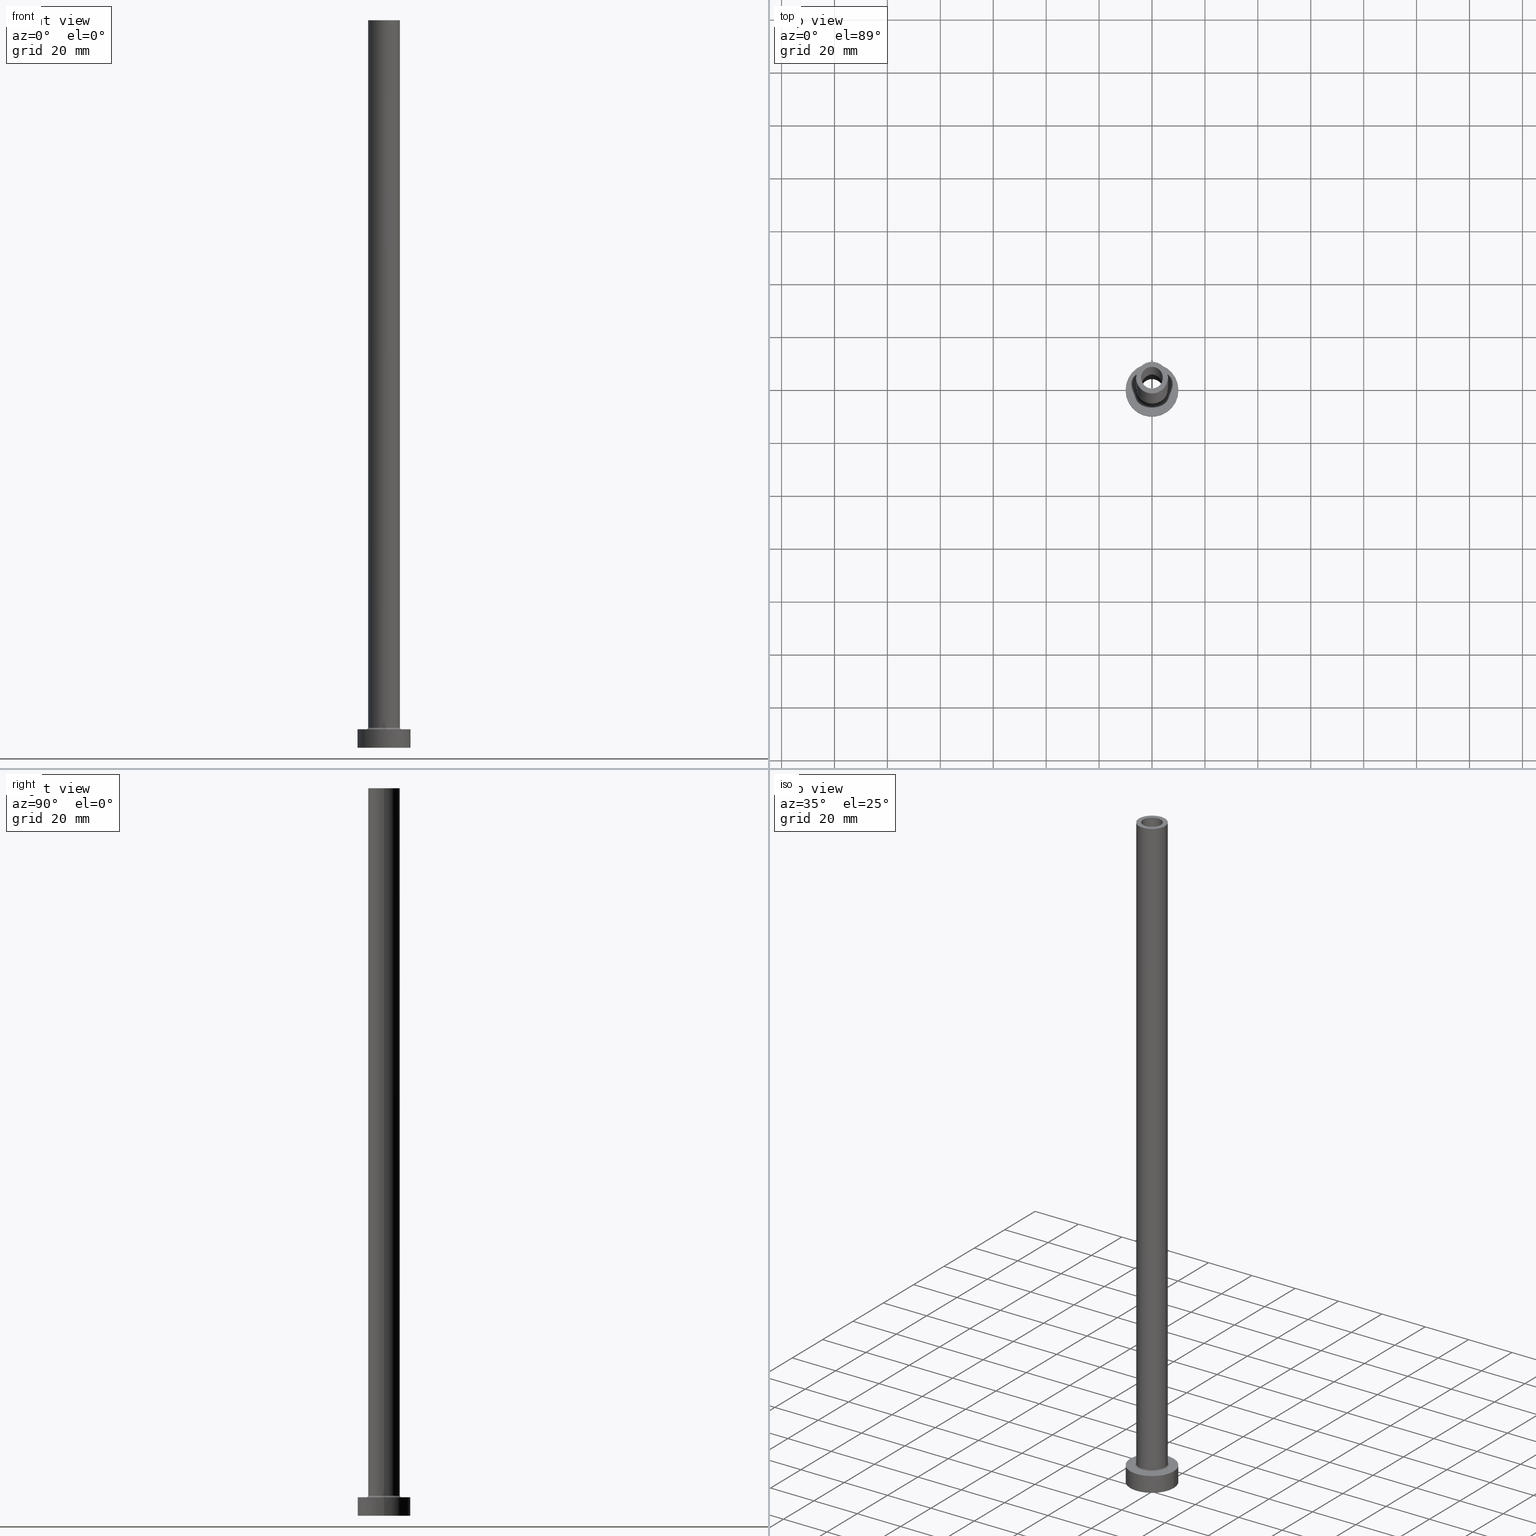
[diagram: canonical four-view strip — front | top / right | iso, engineering-drawing reading convention]
A machine part, canonical four-view strip (front | top / right | iso — engineering-drawing reading convention). The complete STEP part file that produces these views, byte-faithful:
ISO-10303-21;
HEADER;
FILE_DESCRIPTION (( 'STEP AP203' ),
    '1' );
FILE_NAME ('2863.STEP',
    '2023-02-13T07:40:16',
    ( '' ),
    ( '' ),
    'SwSTEP 2.0',
    'SolidWorks 2019',
    '' );
FILE_SCHEMA (( 'CONFIG_CONTROL_DESIGN' ));
ENDSEC;

DATA;
#1 = FACE_OUTER_BOUND ( 'NONE', #260, .T. ) ;
#2 = EDGE_LOOP ( 'NONE', ( #346, #65, #282, #422 ) ) ;
#3 = CARTESIAN_POINT ( 'NONE',  ( 0.000000000000000000, 0.000000000000000000, 275.0000000000000000 ) ) ;
#4 = EDGE_CURVE ( 'NONE', #362, #82, #279, .T. ) ;
#5 = ORIENTED_EDGE ( 'NONE', *, *, #4, .T. ) ;
#6 = APPLICATION_CONTEXT ( 'configuration controlled 3d designs of mechanical parts and assemblies' ) ;
#7 = DIRECTION ( 'NONE',  ( 1.000000000000000000, 0.000000000000000000, -0.000000000000000000 ) ) ;
#8 = ORIENTED_EDGE ( 'NONE', *, *, #254, .T. ) ;
#9 = CIRCLE ( 'NONE', #408, 6.000000000000000888 ) ;
#10 = CARTESIAN_POINT ( 'NONE',  ( 6.000000000000000888, 7.347880794884120722E-16, 275.0000000000000000 ) ) ;
#11 = ORIENTED_EDGE ( 'NONE', *, *, #301, .T. ) ;
#12 = PERSON_AND_ORGANIZATION_ROLE ( 'design_owner' ) ;
#13 = CIRCLE ( 'NONE', #371, 10.00000000000000000 ) ;
#14 = DIRECTION ( 'NONE',  ( 0.000000000000000000, 0.000000000000000000, 1.000000000000000000 ) ) ;
#15 = ORIENTED_EDGE ( 'NONE', *, *, #130, .T. ) ;
#16 = FACE_OUTER_BOUND ( 'NONE', #228, .T. ) ;
#17 = EDGE_CURVE ( 'NONE', #276, #278, #106, .T. ) ;
#18 = APPROVAL_DATE_TIME ( #308, #274 ) ;
#19 = DIRECTION ( 'NONE',  ( -1.000000000000000000, 0.000000000000000000, 0.000000000000000000 ) ) ;
#20 = EDGE_CURVE ( 'NONE', #448, #368, #181, .T. ) ;
#21 = LOCAL_TIME ( 8, 40, 16.00000000000000000, #55 ) ;
#22 = APPROVAL_ROLE ( '' ) ;
#23 = CARTESIAN_POINT ( 'NONE',  ( -10.00000000000000000, 0.000000000000000000, 0.000000000000000000 ) ) ;
#24 = PERSON_AND_ORGANIZATION ( #72, #354 ) ;
#25 = CARTESIAN_POINT ( 'NONE',  ( 0.000000000000000000, 0.000000000000000000, 0.000000000000000000 ) ) ;
#26 = ADVANCED_FACE ( 'NONE', ( #435 ), #46, .T. ) ;
#27 = APPROVAL_STATUS ( 'not_yet_approved' ) ;
#28 = DIRECTION ( 'NONE',  ( 1.000000000000000000, 0.000000000000000000, 0.000000000000000000 ) ) ;
#29 = AXIS2_PLACEMENT_3D ( 'NONE', #269, #54, #122 ) ;
#30 = DIRECTION ( 'NONE',  ( 0.000000000000000000, 0.000000000000000000, -1.000000000000000000 ) ) ;
#31 = DIRECTION ( 'NONE',  ( -1.000000000000000000, 0.000000000000000000, 0.000000000000000000 ) ) ;
#32 = VERTEX_POINT ( 'NONE', #330 ) ;
#33 = ORIENTED_EDGE ( 'NONE', *, *, #458, .T. ) ;
#34 = PLANE ( 'NONE',  #271 ) ;
#35 = ORIENTED_EDGE ( 'NONE', *, *, #121, .F. ) ;
#36 = ORIENTED_EDGE ( 'NONE', *, *, #110, .T. ) ;
#37 = DIRECTION ( 'NONE',  ( -1.000000000000000000, 0.000000000000000000, 0.000000000000000000 ) ) ;
#38 = CLOSED_SHELL ( 'NONE', ( #69, #248, #209, #26, #219, #246, #337, #453, #321, #78, #157, #293, #402, #74 ) ) ;
#39 = ORIENTED_EDGE ( 'NONE', *, *, #17, .T. ) ;
#40 = MANIFOLD_SOLID_BREP ( 'Odebrat vysunut�m4', #38 ) ;
#41 = CARTESIAN_POINT ( 'NONE',  ( -4.099999999999999645, 0.000000000000000000, 275.0000000000000000 ) ) ;
#42 = ORIENTED_EDGE ( 'NONE', *, *, #405, .T. ) ;
#43 = AXIS2_PLACEMENT_3D ( 'NONE', #57, #202, #37 ) ;
#44 = FACE_BOUND ( 'NONE', #247, .T. ) ;
#45 = MECHANICAL_CONTEXT ( 'NONE', #118, 'mechanical' ) ;
#46 = CYLINDRICAL_SURFACE ( 'NONE', #97, 6.000000000000000888 ) ;
#47 = APPROVAL_STATUS ( 'not_yet_approved' ) ;
#48 = CIRCLE ( 'NONE', #196, 10.00000000000000000 ) ;
#49 = DIRECTION ( 'NONE',  ( -1.000000000000000000, 0.000000000000000000, 0.000000000000000000 ) ) ;
#50 = CALENDAR_DATE ( 2023, 13, 2 ) ;
#51 = CARTESIAN_POINT ( 'NONE',  ( 0.000000000000000000, 0.000000000000000000, 275.0000000000000000 ) ) ;
#52 = CIRCLE ( 'NONE', #436, 6.000000000000000888 ) ;
#53 = DATE_AND_TIME ( #88, #432 ) ;
#54 = DIRECTION ( 'NONE',  ( 0.000000000000000000, 0.000000000000000000, 1.000000000000000000 ) ) ;
#55 = COORDINATED_UNIVERSAL_TIME_OFFSET ( 1, 0, .AHEAD. ) ;
#56 = FACE_OUTER_BOUND ( 'NONE', #2, .T. ) ;
#57 = CARTESIAN_POINT ( 'NONE',  ( 0.000000000000000000, 0.000000000000000000, 7.000000000000000000 ) ) ;
#58 = CARTESIAN_POINT ( 'NONE',  ( -4.250000000000000000, 0.000000000000000000, 0.000000000000000000 ) ) ;
#59 = EDGE_LOOP ( 'NONE', ( #35, #210, #325, #99 ) ) ;
#60 = DIRECTION ( 'NONE',  ( -0.000000000000000000, -0.000000000000000000, -1.000000000000000000 ) ) ;
#61 = ORIENTED_EDGE ( 'NONE', *, *, #458, .F. ) ;
#62 = VERTEX_POINT ( 'NONE', #150 ) ;
#63 = EDGE_CURVE ( 'NONE', #170, #323, #328, .T. ) ;
#64 = DIRECTION ( 'NONE',  ( 0.000000000000000000, 0.000000000000000000, 1.000000000000000000 ) ) ;
#65 = ORIENTED_EDGE ( 'NONE', *, *, #121, .T. ) ;
#66 = LINE ( 'NONE', #215, #280 ) ;
#67 = ORIENTED_EDGE ( 'NONE', *, *, #340, .F. ) ;
#68 = VECTOR ( 'NONE', #324, 1000.000000000000000 ) ;
#69 = ADVANCED_FACE ( 'NONE', ( #297 ), #439, .F. ) ;
#70 = CARTESIAN_POINT ( 'NONE',  ( 6.700000000000001066, 0.000000000000000000, 6.999999999999992006 ) ) ;
#71 = VERTEX_POINT ( 'NONE', #414 ) ;
#72 = PERSON ( 'NEUR�EN�', 'NEUR�EN�', 'NEUR�EN�', ('NEUR�EN�'), ('NEUR�EN�'), ('NEUR�EN�') ) ;
#73 = CARTESIAN_POINT ( 'NONE',  ( 0.000000000000000000, 0.000000000000000000, 230.0000000000000284 ) ) ;
#74 = ADVANCED_FACE ( 'NONE', ( #16 ), #307, .F. ) ;
#75 =( NAMED_UNIT ( * ) PLANE_ANGLE_UNIT ( ) SI_UNIT ( $, .RADIAN. ) );
#76 = AXIS2_PLACEMENT_3D ( 'NONE', #256, #155, #338 ) ;
#77 = DIRECTION ( 'NONE',  ( 0.000000000000000000, 0.000000000000000000, 1.000000000000000000 ) ) ;
#78 = ADVANCED_FACE ( 'NONE', ( #447, #87 ), #419, .T. ) ;
#79 = PERSON_AND_ORGANIZATION ( #72, #354 ) ;
#80 = EDGE_CURVE ( 'NONE', #170, #148, #287, .T. ) ;
#81 = SECURITY_CLASSIFICATION_LEVEL ( 'unclassified' ) ;
#82 = VERTEX_POINT ( 'NONE', #156 ) ;
#83 = CIRCLE ( 'NONE', #126, 0.7000000000000000666 ) ;
#84 = DATE_AND_TIME ( #50, #21 ) ;
#85 = DIRECTION ( 'NONE',  ( 1.000000000000000000, 0.000000000000000000, 0.000000000000000000 ) ) ;
#86 = CC_DESIGN_PERSON_AND_ORGANIZATION_ASSIGNMENT ( #445, #449, ( #288 ) ) ;
#87 = FACE_OUTER_BOUND ( 'NONE', #134, .T. ) ;
#88 = CALENDAR_DATE ( 2023, 13, 2 ) ;
#89 = CARTESIAN_POINT ( 'NONE',  ( -6.000000000000000888, 0.000000000000000000, 7.699999999999985079 ) ) ;
#90 = AXIS2_PLACEMENT_3D ( 'NONE', #380, #345, #28 ) ;
#91 = VECTOR ( 'NONE', #433, 1000.000000000000000 ) ;
#92 = PERSON_AND_ORGANIZATION ( #72, #354 ) ;
#93 = DIRECTION ( 'NONE',  ( 1.224646799147353207E-16, 1.000000000000000000, -0.000000000000000000 ) ) ;
#94 = DIRECTION ( 'NONE',  ( 1.000000000000000000, 0.000000000000000000, 0.000000000000000000 ) ) ;
#95 = DIRECTION ( 'NONE',  ( 1.000000000000000000, 0.000000000000000000, -0.000000000000000000 ) ) ;
#96 = PRODUCT_DEFINITION_SHAPE ( 'NONE', 'NONE',  #384 ) ;
#97 = AXIS2_PLACEMENT_3D ( 'NONE', #182, #187, #292 ) ;
#98 = CARTESIAN_POINT ( 'NONE',  ( 0.000000000000000000, 0.000000000000000000, 275.0000000000000000 ) ) ;
#99 = ORIENTED_EDGE ( 'NONE', *, *, #164, .F. ) ;
#100 = ORIENTED_EDGE ( 'NONE', *, *, #443, .T. ) ;
#101 = LINE ( 'NONE', #204, #353 ) ;
#102 = ORIENTED_EDGE ( 'NONE', *, *, #443, .F. ) ;
#103 = DIRECTION ( 'NONE',  ( 0.000000000000000000, 0.000000000000000000, -1.000000000000000000 ) ) ;
#104 = ORIENTED_EDGE ( 'NONE', *, *, #80, .T. ) ;
#105 = DIRECTION ( 'NONE',  ( 1.000000000000000000, 0.000000000000000000, 0.000000000000000000 ) ) ;
#106 = CIRCLE ( 'NONE', #76, 4.250000000000000000 ) ;
#107 = ORIENTED_EDGE ( 'NONE', *, *, #350, .T. ) ;
#108 =( NAMED_UNIT ( * ) SI_UNIT ( $, .STERADIAN. ) SOLID_ANGLE_UNIT ( ) );
#109 = CARTESIAN_POINT ( 'NONE',  ( 0.000000000000000000, 0.000000000000000000, 7.699999999999985079 ) ) ;
#110 = EDGE_CURVE ( 'NONE', #278, #276, #120, .T. ) ;
#111 = PRODUCT ( '2863', '2863', '', ( #45 ) ) ;
#112 = FACE_BOUND ( 'NONE', #332, .T. ) ;
#113 = AXIS2_PLACEMENT_3D ( 'NONE', #275, #60, #105 ) ;
#114 = CC_DESIGN_DATE_AND_TIME_ASSIGNMENT ( #162, #200, ( #383 ) ) ;
#115 = CC_DESIGN_APPROVAL ( #262, ( #383 ) ) ;
#116 = EDGE_LOOP ( 'NONE', ( #175, #264 ) ) ;
#117 = PLANE ( 'NONE',  #409 ) ;
#118 = APPLICATION_CONTEXT ( 'configuration controlled 3d designs of mechanical parts and assemblies' ) ;
#119 = DIRECTION ( 'NONE',  ( 0.000000000000000000, 0.000000000000000000, 1.000000000000000000 ) ) ;
#120 = CIRCLE ( 'NONE', #424, 4.250000000000000000 ) ;
#121 = EDGE_CURVE ( 'NONE', #140, #142, #83, .T. ) ;
#122 = DIRECTION ( 'NONE',  ( 1.000000000000000000, 0.000000000000000000, -0.000000000000000000 ) ) ;
#123 = COORDINATED_UNIVERSAL_TIME_OFFSET ( 1, 0, .AHEAD. ) ;
#124 = DIRECTION ( 'NONE',  ( 1.000000000000000000, 0.000000000000000000, 0.000000000000000000 ) ) ;
#125 = DIRECTION ( 'NONE',  ( 1.000000000000000000, 0.000000000000000000, 0.000000000000000000 ) ) ;
#126 = AXIS2_PLACEMENT_3D ( 'NONE', #442, #93, #378 ) ;
#127 = VECTOR ( 'NONE', #259, 1000.000000000000000 ) ;
#128 = PERSON_AND_ORGANIZATION_ROLE ( 'classification_officer' ) ;
#129 = EDGE_CURVE ( 'NONE', #208, #323, #13, .T. ) ;
#130 = EDGE_CURVE ( 'NONE', #148, #170, #173, .T. ) ;
#131 = CYLINDRICAL_SURFACE ( 'NONE', #381, 6.000000000000000888 ) ;
#132 = CC_DESIGN_PERSON_AND_ORGANIZATION_ASSIGNMENT ( #198, #159, ( #288 ) ) ;
#133 = DIRECTION ( 'NONE',  ( 0.000000000000000000, 0.000000000000000000, 1.000000000000000000 ) ) ;
#134 = EDGE_LOOP ( 'NONE', ( #356, #8 ) ) ;
#135 = AXIS2_PLACEMENT_3D ( 'NONE', #232, #199, #193 ) ;
#136 = CARTESIAN_POINT ( 'NONE',  ( 4.250000000000000000, 5.204748896376250699E-16, 242.0208152801713197 ) ) ;
#137 = ORIENTED_EDGE ( 'NONE', *, *, #311, .F. ) ;
#138 = EDGE_LOOP ( 'NONE', ( #61, #239, #100, #399 ) ) ;
#139 = LINE ( 'NONE', #136, #145 ) ;
#140 = VERTEX_POINT ( 'NONE', #89 ) ;
#141 = FACE_OUTER_BOUND ( 'NONE', #138, .T. ) ;
#142 = VERTEX_POINT ( 'NONE', #444 ) ;
#143 = ORIENTED_EDGE ( 'NONE', *, *, #352, .T. ) ;
#144 = DIRECTION ( 'NONE',  ( 0.000000000000000000, 0.000000000000000000, 1.000000000000000000 ) ) ;
#145 = VECTOR ( 'NONE', #30, 1000.000000000000000 ) ;
#146 = CARTESIAN_POINT ( 'NONE',  ( 6.700000000000001066, 0.000000000000000000, 7.699999999999985079 ) ) ;
#147 = CARTESIAN_POINT ( 'NONE',  ( 0.000000000000000000, 0.000000000000000000, 0.000000000000000000 ) ) ;
#148 = VERTEX_POINT ( 'NONE', #270 ) ;
#149 = APPLICATION_PROTOCOL_DEFINITION ( 'international standard', 'config_control_design', 1994, #118 ) ;
#150 = CARTESIAN_POINT ( 'NONE',  ( 4.099999999999999645, 5.021051876504146399E-16, 275.0000000000000000 ) ) ;
#151 = CARTESIAN_POINT ( 'NONE',  ( -6.000000000000000888, 0.000000000000000000, 275.0000000000000000 ) ) ;
#152 = DIRECTION ( 'NONE',  ( -0.000000000000000000, -0.000000000000000000, -1.000000000000000000 ) ) ;
#153 = CIRCLE ( 'NONE', #113, 6.700000000000001066 ) ;
#154 = CC_DESIGN_APPROVAL ( #349, ( #288 ) ) ;
#155 = DIRECTION ( 'NONE',  ( -0.000000000000000000, -0.000000000000000000, -1.000000000000000000 ) ) ;
#156 = CARTESIAN_POINT ( 'NONE',  ( 4.250000000000000000, 5.204748896376250699E-16, 230.0000000000000284 ) ) ;
#157 = ADVANCED_FACE ( 'NONE', ( #234 ), #242, .F. ) ;
#158 = ADVANCED_BREP_SHAPE_REPRESENTATION ( '2863', ( #40, #251 ), #197 ) ;
#159 = PERSON_AND_ORGANIZATION_ROLE ( 'design_supplier' ) ;
#160 = DIRECTION ( 'NONE',  ( 0.000000000000000000, 0.000000000000000000, 1.000000000000000000 ) ) ;
#161 = CIRCLE ( 'NONE', #90, 6.700000000000001066 ) ;
#162 = DATE_AND_TIME ( #336, #236 ) ;
#163 = PERSON_AND_ORGANIZATION ( #72, #354 ) ;
#164 = EDGE_CURVE ( 'NONE', #142, #368, #161, .T. ) ;
#165 = CIRCLE ( 'NONE', #431, 4.099999999999999645 ) ;
#166 = DIRECTION ( 'NONE',  ( -0.000000000000000000, -0.000000000000000000, -1.000000000000000000 ) ) ;
#167 = EDGE_CURVE ( 'NONE', #460, #317, #52, .T. ) ;
#168 = CC_DESIGN_PERSON_AND_ORGANIZATION_ASSIGNMENT ( #341, #230, ( #384 ) ) ;
#169 = DIRECTION ( 'NONE',  ( 0.000000000000000000, 0.000000000000000000, -1.000000000000000000 ) ) ;
#170 = VERTEX_POINT ( 'NONE', #413 ) ;
#171 = CARTESIAN_POINT ( 'NONE',  ( 0.000000000000000000, 0.000000000000000000, 230.0000000000000284 ) ) ;
#172 = ORIENTED_EDGE ( 'NONE', *, *, #352, .F. ) ;
#173 = CIRCLE ( 'NONE', #392, 10.00000000000000000 ) ;
#174 = CYLINDRICAL_SURFACE ( 'NONE', #303, 10.00000000000000000 ) ;
#175 = ORIENTED_EDGE ( 'NONE', *, *, #129, .F. ) ;
#176 = CARTESIAN_POINT ( 'NONE',  ( 0.000000000000000000, 0.000000000000000000, 7.000000000000000000 ) ) ;
#177 = EDGE_LOOP ( 'NONE', ( #218, #320 ) ) ;
#178 = LINE ( 'NONE', #411, #68 ) ;
#179 = ORIENTED_EDGE ( 'NONE', *, *, #340, .T. ) ;
#180 = DIRECTION ( 'NONE',  ( 0.000000000000000000, 0.000000000000000000, 1.000000000000000000 ) ) ;
#181 = CIRCLE ( 'NONE', #416, 0.7000000000000000666 ) ;
#182 = CARTESIAN_POINT ( 'NONE',  ( 0.000000000000000000, 0.000000000000000000, 275.0000000000000000 ) ) ;
#183 = APPROVAL_PERSON_ORGANIZATION ( #92, #349, #385 ) ;
#184 = DIRECTION ( 'NONE',  ( 0.000000000000000000, 0.000000000000000000, 1.000000000000000000 ) ) ;
#185 = DIRECTION ( 'NONE',  ( 1.000000000000000000, 0.000000000000000000, 0.000000000000000000 ) ) ;
#186 = FACE_OUTER_BOUND ( 'NONE', #253, .T. ) ;
#187 = DIRECTION ( 'NONE',  ( -0.000000000000000000, -0.000000000000000000, -1.000000000000000000 ) ) ;
#188 = CARTESIAN_POINT ( 'NONE',  ( 0.000000000000000000, 0.000000000000000000, 0.000000000000000000 ) ) ;
#189 = AXIS2_PLACEMENT_3D ( 'NONE', #3, #426, #252 ) ;
#190 = LOCAL_TIME ( 8, 40, 16.00000000000000000, #299 ) ;
#191 = UNCERTAINTY_MEASURE_WITH_UNIT (LENGTH_MEASURE( 1.000000000000000082E-05 ), #289, 'distance_accuracy_value', 'NONE');
#192 = APPROVAL_DATE_TIME ( #84, #349 ) ;
#193 = DIRECTION ( 'NONE',  ( 1.000000000000000000, 0.000000000000000000, 0.000000000000000000 ) ) ;
#194 = EDGE_CURVE ( 'NONE', #448, #140, #450, .T. ) ;
#195 = DIRECTION ( 'NONE',  ( 0.000000000000000000, 0.000000000000000000, 1.000000000000000000 ) ) ;
#196 = AXIS2_PLACEMENT_3D ( 'NONE', #423, #133, #243 ) ;
#197 =( GEOMETRIC_REPRESENTATION_CONTEXT ( 3 ) GLOBAL_UNCERTAINTY_ASSIGNED_CONTEXT ( ( #191 ) ) GLOBAL_UNIT_ASSIGNED_CONTEXT ( ( #289, #75, #108 ) ) REPRESENTATION_CONTEXT ( 'NONE', 'WORKASPACE' ) );
#198 = PERSON_AND_ORGANIZATION ( #72, #354 ) ;
#199 = DIRECTION ( 'NONE',  ( 0.000000000000000000, 0.000000000000000000, 1.000000000000000000 ) ) ;
#200 = DATE_TIME_ROLE ( 'classification_date' ) ;
#201 = CARTESIAN_POINT ( 'NONE',  ( 0.000000000000000000, 0.000000000000000000, 7.699999999999985079 ) ) ;
#202 = DIRECTION ( 'NONE',  ( -0.000000000000000000, -0.000000000000000000, -1.000000000000000000 ) ) ;
#203 = LOCAL_TIME ( 8, 40, 16.00000000000000000, #123 ) ;
#204 = CARTESIAN_POINT ( 'NONE',  ( 4.099999999999999645, 5.021051876504146399E-16, 275.0000000000000000 ) ) ;
#205 = ORIENTED_EDGE ( 'NONE', *, *, #110, .F. ) ;
#206 = ORIENTED_EDGE ( 'NONE', *, *, #130, .F. ) ;
#207 = FACE_BOUND ( 'NONE', #177, .T. ) ;
#208 = VERTEX_POINT ( 'NONE', #23 ) ;
#209 = ADVANCED_FACE ( 'NONE', ( #56 ), #363, .F. ) ;
#210 = ORIENTED_EDGE ( 'NONE', *, *, #194, .F. ) ;
#211 = DIRECTION ( 'NONE',  ( -0.000000000000000000, -0.000000000000000000, -1.000000000000000000 ) ) ;
#212 = ORIENTED_EDGE ( 'NONE', *, *, #194, .T. ) ;
#213 = ORIENTED_EDGE ( 'NONE', *, *, #405, .F. ) ;
#214 = VECTOR ( 'NONE', #152, 1000.000000000000000 ) ;
#215 = CARTESIAN_POINT ( 'NONE',  ( -10.00000000000000000, 0.000000000000000000, 7.000000000000000000 ) ) ;
#216 = ORIENTED_EDGE ( 'NONE', *, *, #129, .T. ) ;
#217 = PERSON_AND_ORGANIZATION ( #72, #354 ) ;
#218 = ORIENTED_EDGE ( 'NONE', *, *, #329, .T. ) ;
#219 = ADVANCED_FACE ( 'NONE', ( #415 ), #348, .T. ) ;
#220 = CARTESIAN_POINT ( 'NONE',  ( -6.000000000000000888, 0.000000000000000000, 275.0000000000000000 ) ) ;
#221 = DIRECTION ( 'NONE',  ( 0.000000000000000000, -1.000000000000000000, 0.000000000000000000 ) ) ;
#222 = EDGE_CURVE ( 'NONE', #62, #32, #101, .T. ) ;
#223 = AXIS2_PLACEMENT_3D ( 'NONE', #201, #306, #124 ) ;
#224 = DIRECTION ( 'NONE',  ( 1.000000000000000000, 0.000000000000000000, 0.000000000000000000 ) ) ;
#225 = ORIENTED_EDGE ( 'NONE', *, *, #311, .T. ) ;
#226 = ORIENTED_EDGE ( 'NONE', *, *, #63, .F. ) ;
#227 = CARTESIAN_POINT ( 'NONE',  ( 0.000000000000000000, 0.000000000000000000, 230.0000000000000284 ) ) ;
#228 = EDGE_LOOP ( 'NONE', ( #374, #315, #42, #67 ) ) ;
#229 = APPROVAL_DATE_TIME ( #441, #262 ) ;
#230 = PERSON_AND_ORGANIZATION_ROLE ( 'creator' ) ;
#231 = EDGE_CURVE ( 'NONE', #82, #278, #139, .T. ) ;
#232 = CARTESIAN_POINT ( 'NONE',  ( 0.000000000000000000, 0.000000000000000000, 7.000000000000000000 ) ) ;
#233 = CC_DESIGN_DATE_AND_TIME_ASSIGNMENT ( #53, #237, ( #384 ) ) ;
#234 = FACE_OUTER_BOUND ( 'NONE', #59, .T. ) ;
#235 = AXIS2_PLACEMENT_3D ( 'NONE', #370, #372, #185 ) ;
#236 = LOCAL_TIME ( 8, 40, 16.00000000000000000, #379 ) ;
#237 = DATE_TIME_ROLE ( 'creation_date' ) ;
#238 = DIRECTION ( 'NONE',  ( 1.000000000000000000, 0.000000000000000000, 0.000000000000000000 ) ) ;
#239 = ORIENTED_EDGE ( 'NONE', *, *, #167, .F. ) ;
#240 = CARTESIAN_POINT ( 'NONE',  ( 0.000000000000000000, 0.000000000000000000, 275.0000000000000000 ) ) ;
#241 = ORIENTED_EDGE ( 'NONE', *, *, #387, .T. ) ;
#242 = TOROIDAL_SURFACE ( 'NONE', #294, 6.700000000000001066, 0.6999999999999999556 ) ;
#243 = DIRECTION ( 'NONE',  ( 1.000000000000000000, 0.000000000000000000, 0.000000000000000000 ) ) ;
#244 = ORIENTED_EDGE ( 'NONE', *, *, #387, .F. ) ;
#245 = CYLINDRICAL_SURFACE ( 'NONE', #459, 4.250000000000000000 ) ;
#246 = ADVANCED_FACE ( 'NONE', ( #351 ), #174, .T. ) ;
#247 = EDGE_LOOP ( 'NONE', ( #241, #179 ) ) ;
#248 = ADVANCED_FACE ( 'NONE', ( #319 ), #285, .F. ) ;
#249 = DIRECTION ( 'NONE',  ( 0.000000000000000000, 0.000000000000000000, 1.000000000000000000 ) ) ;
#250 = EDGE_LOOP ( 'NONE', ( #15, #104 ) ) ;
#251 = AXIS2_PLACEMENT_3D ( 'NONE', #188, #184, #373 ) ;
#252 = DIRECTION ( 'NONE',  ( 1.000000000000000000, 0.000000000000000000, 0.000000000000000000 ) ) ;
#253 = EDGE_LOOP ( 'NONE', ( #389, #360 ) ) ;
#254 = EDGE_CURVE ( 'NONE', #317, #460, #9, .T. ) ;
#255 = DIRECTION ( 'NONE',  ( 1.000000000000000000, 0.000000000000000000, -0.000000000000000000 ) ) ;
#256 = CARTESIAN_POINT ( 'NONE',  ( 0.000000000000000000, 0.000000000000000000, 0.000000000000000000 ) ) ;
#257 = LINE ( 'NONE', #220, #91 ) ;
#258 = VECTOR ( 'NONE', #103, 1000.000000000000000 ) ;
#259 = DIRECTION ( 'NONE',  ( -0.000000000000000000, -0.000000000000000000, -1.000000000000000000 ) ) ;
#260 = EDGE_LOOP ( 'NONE', ( #425, #397, #225, #39 ) ) ;
#261 = CARTESIAN_POINT ( 'NONE',  ( 0.000000000000000000, 0.000000000000000000, 275.0000000000000000 ) ) ;
#262 = APPROVAL ( #27, 'NEUR�EN�' ) ;
#263 = DIRECTION ( 'NONE',  ( 1.000000000000000000, 0.000000000000000000, 0.000000000000000000 ) ) ;
#264 = ORIENTED_EDGE ( 'NONE', *, *, #301, .F. ) ;
#265 = CARTESIAN_POINT ( 'NONE',  ( 0.000000000000000000, 0.000000000000000000, 7.000000000000000000 ) ) ;
#266 = AXIS2_PLACEMENT_3D ( 'NONE', #281, #396, #454 ) ;
#267 = APPROVAL_STATUS ( 'not_yet_approved' ) ;
#268 = DIRECTION ( 'NONE',  ( -0.000000000000000000, -0.000000000000000000, -1.000000000000000000 ) ) ;
#269 = CARTESIAN_POINT ( 'NONE',  ( 0.000000000000000000, 0.000000000000000000, 275.0000000000000000 ) ) ;
#270 = CARTESIAN_POINT ( 'NONE',  ( -10.00000000000000000, 0.000000000000000000, 7.000000000000000000 ) ) ;
#271 = AXIS2_PLACEMENT_3D ( 'NONE', #421, #249, #95 ) ;
#272 = AXIS2_PLACEMENT_3D ( 'NONE', #73, #180, #263 ) ;
#273 = DIRECTION ( 'NONE',  ( 0.000000000000000000, 0.000000000000000000, -1.000000000000000000 ) ) ;
#274 = APPROVAL ( #47, 'NEUR�EN�' ) ;
#275 = CARTESIAN_POINT ( 'NONE',  ( 0.000000000000000000, 0.000000000000000000, 7.000000000000000000 ) ) ;
#276 = VERTEX_POINT ( 'NONE', #58 ) ;
#277 = CARTESIAN_POINT ( 'NONE',  ( 0.000000000000000000, 0.000000000000000000, 242.0208152801713197 ) ) ;
#278 = VERTEX_POINT ( 'NONE', #313 ) ;
#279 = CIRCLE ( 'NONE', #235, 4.250000000000000000 ) ;
#280 = VECTOR ( 'NONE', #365, 1000.000000000000000 ) ;
#281 = CARTESIAN_POINT ( 'NONE',  ( 0.000000000000000000, 0.000000000000000000, 242.0208152801713197 ) ) ;
#282 = ORIENTED_EDGE ( 'NONE', *, *, #329, .F. ) ;
#283 = CARTESIAN_POINT ( 'NONE',  ( -4.250000000000000000, 0.000000000000000000, 242.0208152801713197 ) ) ;
#284 = ORIENTED_EDGE ( 'NONE', *, *, #222, .T. ) ;
#285 = CYLINDRICAL_SURFACE ( 'NONE', #266, 4.250000000000000000 ) ;
#286 = EDGE_LOOP ( 'NONE', ( #107, #284, #244, #213 ) ) ;
#287 = CIRCLE ( 'NONE', #135, 10.00000000000000000 ) ;
#288 = PRODUCT_DEFINITION_FORMATION_WITH_SPECIFIED_SOURCE ( 'LIBOVOLN�', '', #111, .NOT_KNOWN. ) ;
#289 =( LENGTH_UNIT ( ) NAMED_UNIT ( * ) SI_UNIT ( .MILLI., .METRE. ) );
#290 = DIRECTION ( 'NONE',  ( 0.000000000000000000, 0.000000000000000000, -1.000000000000000000 ) ) ;
#291 = CARTESIAN_POINT ( 'NONE',  ( 0.000000000000000000, 0.000000000000000000, 230.0000000000000284 ) ) ;
#292 = DIRECTION ( 'NONE',  ( -1.000000000000000000, 0.000000000000000000, 0.000000000000000000 ) ) ;
#293 = ADVANCED_FACE ( 'NONE', ( #1 ), #245, .F. ) ;
#294 = AXIS2_PLACEMENT_3D ( 'NONE', #382, #388, #417 ) ;
#295 = APPLICATION_PROTOCOL_DEFINITION ( 'international standard', 'config_control_design', 1994, #6 ) ;
#296 = CIRCLE ( 'NONE', #272, 4.099999999999999645 ) ;
#297 = FACE_OUTER_BOUND ( 'NONE', #286, .T. ) ;
#298 = PRODUCT_RELATED_PRODUCT_CATEGORY ( 'detail', '', ( #111 ) ) ;
#299 = COORDINATED_UNIVERSAL_TIME_OFFSET ( 1, 0, .AHEAD. ) ;
#300 = DIRECTION ( 'NONE',  ( 0.000000000000000000, 0.000000000000000000, -1.000000000000000000 ) ) ;
#301 = EDGE_CURVE ( 'NONE', #323, #208, #48, .T. ) ;
#302 = DIRECTION ( 'NONE',  ( 1.000000000000000000, 0.000000000000000000, 0.000000000000000000 ) ) ;
#303 = AXIS2_PLACEMENT_3D ( 'NONE', #176, #166, #355 ) ;
#304 = APPROVAL_PERSON_ORGANIZATION ( #79, #274, #334 ) ;
#305 = COORDINATED_UNIVERSAL_TIME_OFFSET ( 1, 0, .AHEAD. ) ;
#306 = DIRECTION ( 'NONE',  ( 0.000000000000000000, 0.000000000000000000, 1.000000000000000000 ) ) ;
#307 = CYLINDRICAL_SURFACE ( 'NONE', #327, 4.099999999999999645 ) ;
#308 = DATE_AND_TIME ( #440, #190 ) ;
#309 = ORIENTED_EDGE ( 'NONE', *, *, #17, .F. ) ;
#310 = CIRCLE ( 'NONE', #333, 4.099999999999999645 ) ;
#311 = EDGE_CURVE ( 'NONE', #362, #276, #428, .T. ) ;
#312 = CC_DESIGN_APPROVAL ( #274, ( #384 ) ) ;
#313 = CARTESIAN_POINT ( 'NONE',  ( 4.250000000000000000, 5.204748896376250699E-16, 0.000000000000000000 ) ) ;
#314 = DIRECTION ( 'NONE',  ( 0.000000000000000000, 0.000000000000000000, -1.000000000000000000 ) ) ;
#315 = ORIENTED_EDGE ( 'NONE', *, *, #347, .T. ) ;
#316 = DIRECTION ( 'NONE',  ( 0.000000000000000000, 0.000000000000000000, 1.000000000000000000 ) ) ;
#317 = VERTEX_POINT ( 'NONE', #452 ) ;
#318 = ORIENTED_EDGE ( 'NONE', *, *, #80, .F. ) ;
#319 = FACE_OUTER_BOUND ( 'NONE', #455, .T. ) ;
#320 = ORIENTED_EDGE ( 'NONE', *, *, #164, .T. ) ;
#321 = ADVANCED_FACE ( 'NONE', ( #141 ), #131, .T. ) ;
#322 = CARTESIAN_POINT ( 'NONE',  ( 10.00000000000000000, 1.224646799147353256E-15, 0.000000000000000000 ) ) ;
#323 = VERTEX_POINT ( 'NONE', #322 ) ;
#324 = DIRECTION ( 'NONE',  ( 0.000000000000000000, 0.000000000000000000, -1.000000000000000000 ) ) ;
#325 = ORIENTED_EDGE ( 'NONE', *, *, #20, .T. ) ;
#326 = CC_DESIGN_PERSON_AND_ORGANIZATION_ASSIGNMENT ( #163, #128, ( #383 ) ) ;
#327 = AXIS2_PLACEMENT_3D ( 'NONE', #451, #300, #19 ) ;
#328 = LINE ( 'NONE', #376, #214 ) ;
#329 = EDGE_CURVE ( 'NONE', #368, #142, #153, .T. ) ;
#330 = CARTESIAN_POINT ( 'NONE',  ( 4.099999999999999645, 5.021051876504146399E-16, 230.0000000000000284 ) ) ;
#331 = PLANE ( 'NONE',  #393 ) ;
#332 = EDGE_LOOP ( 'NONE', ( #309, #205 ) ) ;
#333 = AXIS2_PLACEMENT_3D ( 'NONE', #171, #316, #457 ) ;
#334 = APPROVAL_ROLE ( '' ) ;
#335 = DESIGN_CONTEXT ( 'detailed design', #6, 'design' ) ;
#336 = CALENDAR_DATE ( 2023, 13, 2 ) ;
#337 = ADVANCED_FACE ( 'NONE', ( #207, #358 ), #34, .T. ) ;
#338 = DIRECTION ( 'NONE',  ( 1.000000000000000000, 0.000000000000000000, 0.000000000000000000 ) ) ;
#339 = CALENDAR_DATE ( 2023, 13, 2 ) ;
#340 = EDGE_CURVE ( 'NONE', #32, #71, #310, .T. ) ;
#341 = PERSON_AND_ORGANIZATION ( #72, #354 ) ;
#342 = AXIS2_PLACEMENT_3D ( 'NONE', #261, #273, #49 ) ;
#343 = DIRECTION ( 'NONE',  ( 0.000000000000000000, 0.000000000000000000, 1.000000000000000000 ) ) ;
#344 = APPROVAL_PERSON_ORGANIZATION ( #24, #262, #22 ) ;
#345 = DIRECTION ( 'NONE',  ( -0.000000000000000000, -0.000000000000000000, -1.000000000000000000 ) ) ;
#346 = ORIENTED_EDGE ( 'NONE', *, *, #434, .F. ) ;
#347 = EDGE_CURVE ( 'NONE', #62, #357, #400, .T. ) ;
#348 = CYLINDRICAL_SURFACE ( 'NONE', #43, 10.00000000000000000 ) ;
#349 = APPROVAL ( #267, 'NEUR�EN�' ) ;
#350 = EDGE_CURVE ( 'NONE', #357, #62, #165, .T. ) ;
#351 = FACE_OUTER_BOUND ( 'NONE', #420, .T. ) ;
#352 = EDGE_CURVE ( 'NONE', #148, #208, #66, .T. ) ;
#353 = VECTOR ( 'NONE', #314, 1000.000000000000000 ) ;
#354 = ORGANIZATION ( 'NEUR�EN�', 'NEUR�EN�', '' ) ;
#355 = DIRECTION ( 'NONE',  ( -1.000000000000000000, 0.000000000000000000, 0.000000000000000000 ) ) ;
#356 = ORIENTED_EDGE ( 'NONE', *, *, #167, .T. ) ;
#357 = VERTEX_POINT ( 'NONE', #41 ) ;
#358 = FACE_OUTER_BOUND ( 'NONE', #250, .T. ) ;
#359 = EDGE_LOOP ( 'NONE', ( #427, #33, #212, #102 ) ) ;
#360 = ORIENTED_EDGE ( 'NONE', *, *, #456, .F. ) ;
#361 = DIRECTION ( 'NONE',  ( -1.000000000000000000, 0.000000000000000000, 0.000000000000000000 ) ) ;
#362 = VERTEX_POINT ( 'NONE', #403 ) ;
#363 = TOROIDAL_SURFACE ( 'NONE', #223, 6.700000000000001066, 0.6999999999999999556 ) ;
#364 = CIRCLE ( 'NONE', #461, 4.250000000000000000 ) ;
#365 = DIRECTION ( 'NONE',  ( -0.000000000000000000, -0.000000000000000000, -1.000000000000000000 ) ) ;
#366 = ORIENTED_EDGE ( 'NONE', *, *, #347, .F. ) ;
#367 = CC_DESIGN_PERSON_AND_ORGANIZATION_ASSIGNMENT ( #217, #12, ( #111 ) ) ;
#368 = VERTEX_POINT ( 'NONE', #70 ) ;
#369 = DIRECTION ( 'NONE',  ( 1.000000000000000000, 0.000000000000000000, 0.000000000000000000 ) ) ;
#370 = CARTESIAN_POINT ( 'NONE',  ( 0.000000000000000000, 0.000000000000000000, 230.0000000000000284 ) ) ;
#371 = AXIS2_PLACEMENT_3D ( 'NONE', #25, #119, #302 ) ;
#372 = DIRECTION ( 'NONE',  ( 0.000000000000000000, 0.000000000000000000, 1.000000000000000000 ) ) ;
#373 = DIRECTION ( 'NONE',  ( 1.000000000000000000, 0.000000000000000000, 0.000000000000000000 ) ) ;
#374 = ORIENTED_EDGE ( 'NONE', *, *, #222, .F. ) ;
#375 = FACE_OUTER_BOUND ( 'NONE', #116, .T. ) ;
#376 = CARTESIAN_POINT ( 'NONE',  ( 10.00000000000000000, 1.224646799147353256E-15, 7.000000000000000000 ) ) ;
#377 = SHAPE_DEFINITION_REPRESENTATION ( #96, #158 ) ;
#378 = DIRECTION ( 'NONE',  ( -1.000000000000000000, 1.224646799147353454E-16, 0.000000000000000000 ) ) ;
#379 = COORDINATED_UNIVERSAL_TIME_OFFSET ( 1, 0, .AHEAD. ) ;
#380 = CARTESIAN_POINT ( 'NONE',  ( 0.000000000000000000, 0.000000000000000000, 7.000000000000000000 ) ) ;
#381 = AXIS2_PLACEMENT_3D ( 'NONE', #394, #211, #361 ) ;
#382 = CARTESIAN_POINT ( 'NONE',  ( 0.000000000000000000, 0.000000000000000000, 7.699999999999985079 ) ) ;
#383 = SECURITY_CLASSIFICATION ( '', '', #81 ) ;
#384 = PRODUCT_DEFINITION ( 'NEZN�M�', '', #288, #335 ) ;
#385 = APPROVAL_ROLE ( '' ) ;
#386 = CARTESIAN_POINT ( 'NONE',  ( 0.000000000000000000, 0.000000000000000000, 7.699999999999985079 ) ) ;
#387 = EDGE_CURVE ( 'NONE', #71, #32, #296, .T. ) ;
#388 = DIRECTION ( 'NONE',  ( 0.000000000000000000, 0.000000000000000000, 1.000000000000000000 ) ) ;
#389 = ORIENTED_EDGE ( 'NONE', *, *, #4, .F. ) ;
#390 = DIRECTION ( 'NONE',  ( 1.000000000000000000, 0.000000000000000000, 0.000000000000000000 ) ) ;
#391 = ORIENTED_EDGE ( 'NONE', *, *, #63, .T. ) ;
#392 = AXIS2_PLACEMENT_3D ( 'NONE', #265, #160, #125 ) ;
#393 = AXIS2_PLACEMENT_3D ( 'NONE', #147, #77, #7 ) ;
#394 = CARTESIAN_POINT ( 'NONE',  ( 0.000000000000000000, 0.000000000000000000, 275.0000000000000000 ) ) ;
#395 = ORIENTED_EDGE ( 'NONE', *, *, #350, .F. ) ;
#396 = DIRECTION ( 'NONE',  ( 0.000000000000000000, 0.000000000000000000, -1.000000000000000000 ) ) ;
#397 = ORIENTED_EDGE ( 'NONE', *, *, #456, .T. ) ;
#398 = DIRECTION ( 'NONE',  ( 0.000000000000000000, 0.000000000000000000, 1.000000000000000000 ) ) ;
#399 = ORIENTED_EDGE ( 'NONE', *, *, #434, .T. ) ;
#400 = CIRCLE ( 'NONE', #189, 4.099999999999999645 ) ;
#401 = CIRCLE ( 'NONE', #437, 6.000000000000000888 ) ;
#402 = ADVANCED_FACE ( 'NONE', ( #44, #186 ), #117, .F. ) ;
#403 = CARTESIAN_POINT ( 'NONE',  ( -4.250000000000000000, 0.000000000000000000, 230.0000000000000284 ) ) ;
#404 = EDGE_LOOP ( 'NONE', ( #395, #366 ) ) ;
#405 = EDGE_CURVE ( 'NONE', #357, #71, #178, .T. ) ;
#406 = CARTESIAN_POINT ( 'NONE',  ( 6.000000000000000888, 7.347880794884120722E-16, 7.699999999999985079 ) ) ;
#407 = ORIENTED_EDGE ( 'NONE', *, *, #231, .T. ) ;
#408 = AXIS2_PLACEMENT_3D ( 'NONE', #98, #64, #390 ) ;
#409 = AXIS2_PLACEMENT_3D ( 'NONE', #227, #14, #255 ) ;
#410 = LINE ( 'NONE', #10, #127 ) ;
#411 = CARTESIAN_POINT ( 'NONE',  ( -4.099999999999999645, 0.000000000000000000, 275.0000000000000000 ) ) ;
#412 = AXIS2_PLACEMENT_3D ( 'NONE', #386, #343, #85 ) ;
#413 = CARTESIAN_POINT ( 'NONE',  ( 10.00000000000000000, 1.224646799147353256E-15, 7.000000000000000000 ) ) ;
#414 = CARTESIAN_POINT ( 'NONE',  ( -4.099999999999999645, 0.000000000000000000, 230.0000000000000284 ) ) ;
#415 = FACE_OUTER_BOUND ( 'NONE', #429, .T. ) ;
#416 = AXIS2_PLACEMENT_3D ( 'NONE', #146, #221, #290 ) ;
#417 = DIRECTION ( 'NONE',  ( 1.000000000000000000, 0.000000000000000000, 0.000000000000000000 ) ) ;
#418 = CC_DESIGN_SECURITY_CLASSIFICATION ( #383, ( #288 ) ) ;
#419 = PLANE ( 'NONE',  #29 ) ;
#420 = EDGE_LOOP ( 'NONE', ( #226, #206, #143, #216 ) ) ;
#421 = CARTESIAN_POINT ( 'NONE',  ( 0.000000000000000000, 0.000000000000000000, 7.000000000000000000 ) ) ;
#422 = ORIENTED_EDGE ( 'NONE', *, *, #20, .F. ) ;
#423 = CARTESIAN_POINT ( 'NONE',  ( 0.000000000000000000, 0.000000000000000000, 0.000000000000000000 ) ) ;
#424 = AXIS2_PLACEMENT_3D ( 'NONE', #446, #268, #94 ) ;
#425 = ORIENTED_EDGE ( 'NONE', *, *, #231, .F. ) ;
#426 = DIRECTION ( 'NONE',  ( 0.000000000000000000, 0.000000000000000000, 1.000000000000000000 ) ) ;
#427 = ORIENTED_EDGE ( 'NONE', *, *, #254, .F. ) ;
#428 = LINE ( 'NONE', #283, #258 ) ;
#429 = EDGE_LOOP ( 'NONE', ( #318, #391, #11, #172 ) ) ;
#430 = DIRECTION ( 'NONE',  ( 1.000000000000000000, 0.000000000000000000, 0.000000000000000000 ) ) ;
#431 = AXIS2_PLACEMENT_3D ( 'NONE', #240, #398, #430 ) ;
#432 = LOCAL_TIME ( 8, 40, 16.00000000000000000, #305 ) ;
#433 = DIRECTION ( 'NONE',  ( -0.000000000000000000, -0.000000000000000000, -1.000000000000000000 ) ) ;
#434 = EDGE_CURVE ( 'NONE', #140, #448, #401, .T. ) ;
#435 = FACE_OUTER_BOUND ( 'NONE', #359, .T. ) ;
#436 = AXIS2_PLACEMENT_3D ( 'NONE', #51, #195, #238 ) ;
#437 = AXIS2_PLACEMENT_3D ( 'NONE', #109, #438, #224 ) ;
#438 = DIRECTION ( 'NONE',  ( 0.000000000000000000, 0.000000000000000000, 1.000000000000000000 ) ) ;
#439 = CYLINDRICAL_SURFACE ( 'NONE', #342, 4.099999999999999645 ) ;
#440 = CALENDAR_DATE ( 2023, 13, 2 ) ;
#441 = DATE_AND_TIME ( #339, #203 ) ;
#442 = CARTESIAN_POINT ( 'NONE',  ( -6.700000000000001066, 8.205133554287267548E-16, 7.699999999999985079 ) ) ;
#443 = EDGE_CURVE ( 'NONE', #460, #140, #257, .T. ) ;
#444 = CARTESIAN_POINT ( 'NONE',  ( -6.700000000000001066, 8.205133554287267548E-16, 6.999999999999992006 ) ) ;
#445 = PERSON_AND_ORGANIZATION ( #72, #354 ) ;
#446 = CARTESIAN_POINT ( 'NONE',  ( 0.000000000000000000, 0.000000000000000000, 0.000000000000000000 ) ) ;
#447 = FACE_BOUND ( 'NONE', #404, .T. ) ;
#448 = VERTEX_POINT ( 'NONE', #406 ) ;
#449 = PERSON_AND_ORGANIZATION_ROLE ( 'creator' ) ;
#450 = CIRCLE ( 'NONE', #412, 6.000000000000000888 ) ;
#451 = CARTESIAN_POINT ( 'NONE',  ( 0.000000000000000000, 0.000000000000000000, 275.0000000000000000 ) ) ;
#452 = CARTESIAN_POINT ( 'NONE',  ( 6.000000000000000888, 7.347880794884120722E-16, 275.0000000000000000 ) ) ;
#453 = ADVANCED_FACE ( 'NONE', ( #112, #375 ), #331, .F. ) ;
#454 = DIRECTION ( 'NONE',  ( -1.000000000000000000, 0.000000000000000000, 0.000000000000000000 ) ) ;
#455 = EDGE_LOOP ( 'NONE', ( #5, #407, #36, #137 ) ) ;
#456 = EDGE_CURVE ( 'NONE', #82, #362, #364, .T. ) ;
#457 = DIRECTION ( 'NONE',  ( 1.000000000000000000, 0.000000000000000000, 0.000000000000000000 ) ) ;
#458 = EDGE_CURVE ( 'NONE', #317, #448, #410, .T. ) ;
#459 = AXIS2_PLACEMENT_3D ( 'NONE', #277, #169, #31 ) ;
#460 = VERTEX_POINT ( 'NONE', #151 ) ;
#461 = AXIS2_PLACEMENT_3D ( 'NONE', #291, #144, #369 ) ;
ENDSEC;
END-ISO-10303-21;
